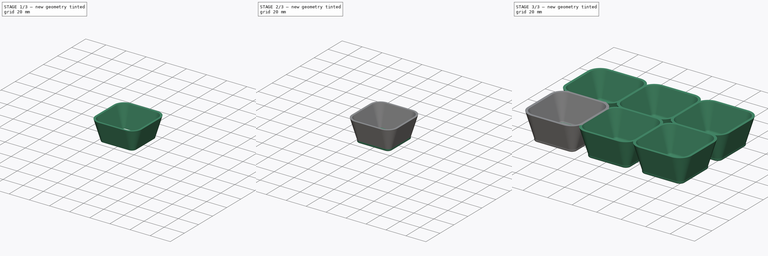
[diagram: build sequence overview — one tinted view per stage of 3, left to right]
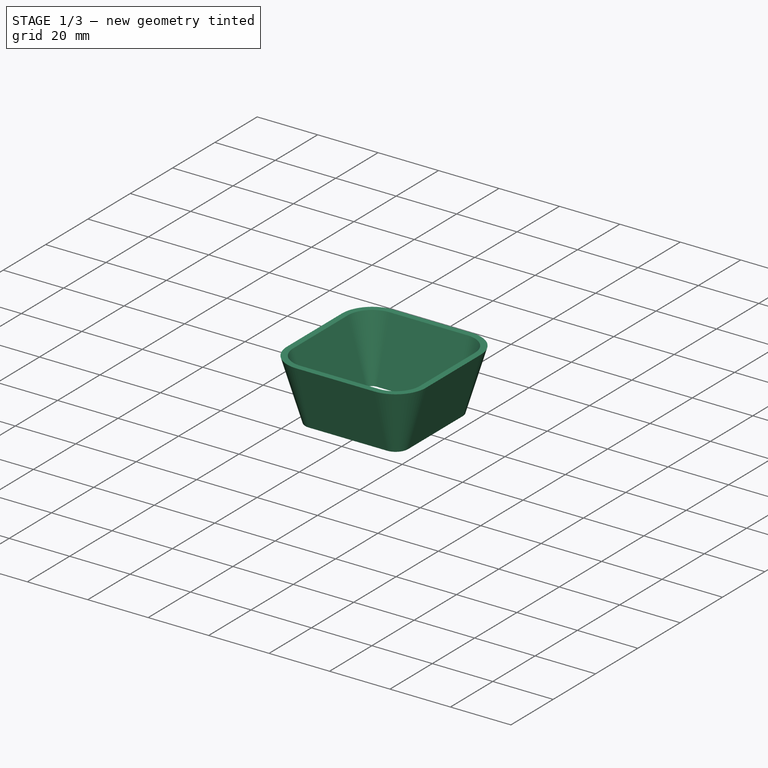
[diagram: stage 1 of 3 — iso view after this stage's code; geometry added in this stage tinted green]
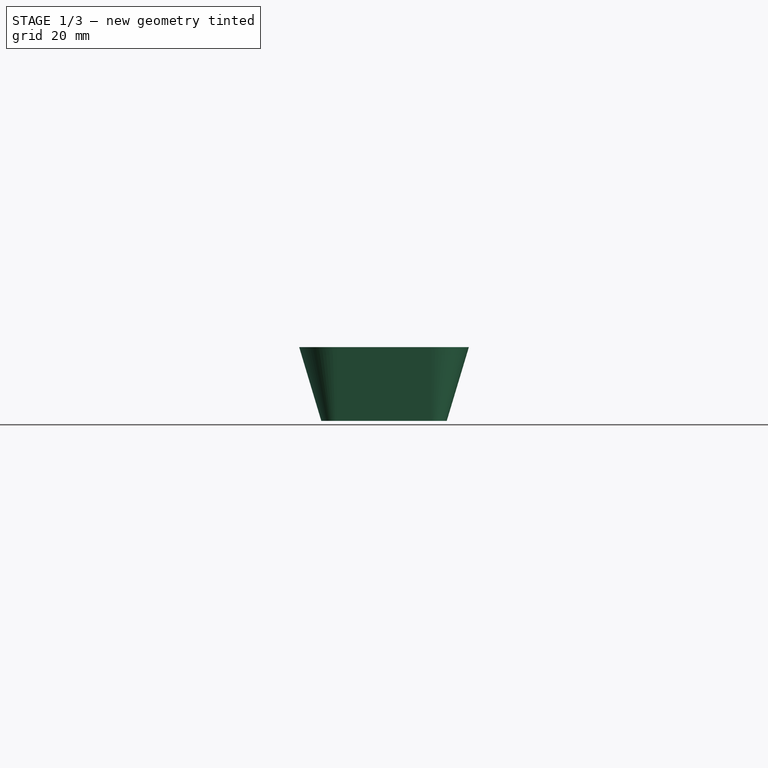
[diagram: stage 1 of 3 — front view after this stage's code; geometry added in this stage tinted green]
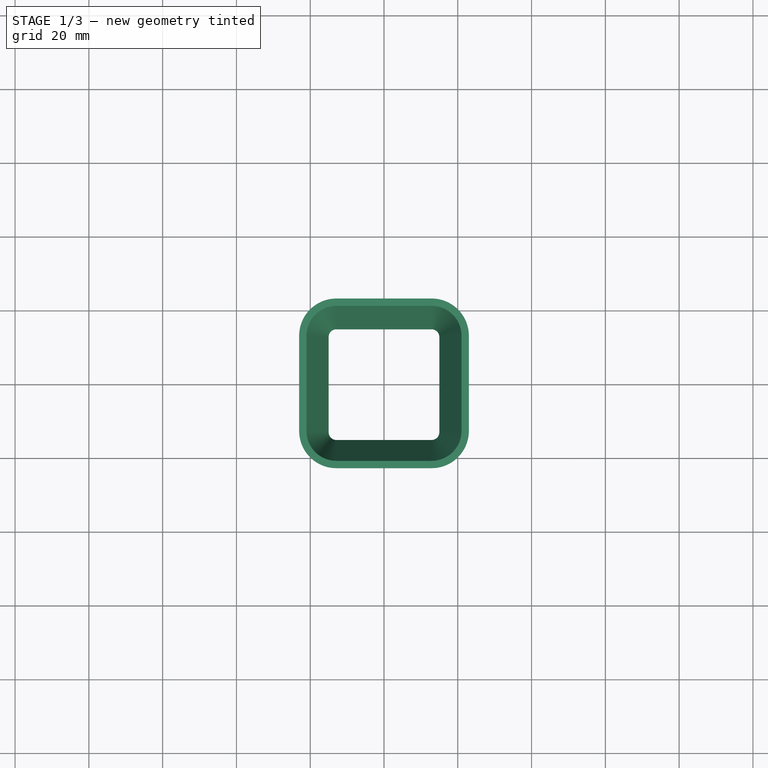
[diagram: stage 1 of 3 — top view after this stage's code; geometry added in this stage tinted green]
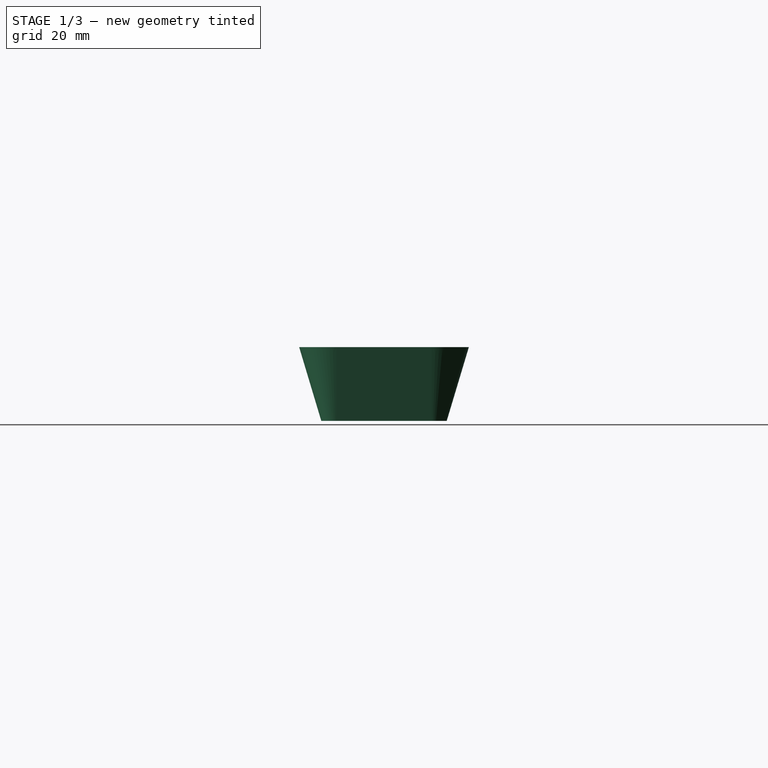
[diagram: stage 1 of 3 — right view after this stage's code; geometry added in this stage tinted green]
FCSTD DOCUMENT  (FreeCAD 0.22RUnknown)
Label: parts tray
License: All rights reserved
LicenseURL: http://en.wikipedia.org/wiki/All_rights_reserved
objects: PartDesign::SubShapeBinder×3, PartDesign::Fillet×2, PartDesign::LinearPattern×2, Sketcher::SketchObject×1, Spreadsheet::Sheet×1, PartDesign::AdditiveLoft×1, PartDesign::SubtractiveLoft×1, PartDesign::Pad×1, PartDesign::MultiTransform×1, PartDesign::Body×1, Part::Refine×1
note: 19 computed .brp shape members not serialized (recipe doc carries the construction recipe); baked Part::Feature solids carry a one-line shape summary decoded from their .brp

FEATURE [Sketcher::SketchObject] Sketch
  AttachmentSupport = -> [XY_Plane]
  FullyConstrained = false
  MapMode = 5
  expr: Constraints[19] = Spreadsheet.depth
  expr: Constraints[20] = Spreadsheet.width
  sketch-geometry (10):
    g0: LineSegment StartX=15 StartY=-12.9122 StartZ=0 EndX=15 EndY=12.9122 EndZ=0
    g1: LineSegment StartX=12.9122 StartY=15 StartZ=0 EndX=-12.9122 EndY=15 EndZ=0
    g2: LineSegment StartX=-15 StartY=12.9122 StartZ=0 EndX=-15 EndY=-12.9122 EndZ=0
    g3: LineSegment StartX=-12.9122 StartY=-15 StartZ=0 EndX=12.9122 EndY=-15 EndZ=0
    g4: ArcOfCircle CenterX=12.9122 CenterY=-12.9122 CenterZ=0 NormalX=0 NormalY=0 NormalZ=1 AngleXU=0 Radius=2.08775 StartAngle=4.71239 EndAngle=6.28319
    g5: ArcOfCircle CenterX=12.9122 CenterY=12.9122 CenterZ=0 NormalX=0 NormalY=0 NormalZ=1 AngleXU=0 Radius=2.08775 StartAngle=-1.95e-14 EndAngle=1.5708
    g6: ArcOfCircle CenterX=-12.9122 CenterY=12.9122 CenterZ=0 NormalX=0 NormalY=0 NormalZ=1 AngleXU=0 Radius=2.08775 StartAngle=1.5708 EndAngle=3.14159
    g7: ArcOfCircle CenterX=-12.9122 CenterY=-12.9122 CenterZ=0 NormalX=0 NormalY=0 NormalZ=1 AngleXU=0 Radius=2.08775 StartAngle=3.14159 EndAngle=4.71239
    g8: GeomPoint X=15 Y=-15 Z=0
    g9: GeomPoint X=-15 Y=15 Z=0
  constraints (21):
    c: Tangent(g0,g4) = -1.5708
    c: Tangent(g0,g5) = -1.5708
    c: Tangent(g1,g5) = -1.5708
    c: Tangent(g1,g6) = -1.5708
    c: Tangent(g2,g6) = -1.5708
    c: Tangent(g2,g7) = -1.5708
    c: Tangent(g3,g7) = -1.5708
    c: Tangent(g3,g4) = -1.5708
    c: Vertical(g0)
    c: Vertical(g2)
    c: Horizontal(g1)
    c: Horizontal(g3)
    c: Equal(g6,g7)
    c: PointOnObject(g8,g0)
    c: PointOnObject(g8,g3)
    c: PointOnObject(g9,g1)
    c: PointOnObject(g9,g2)
    c: Symmetric(g0,g2,g-2)
    c: Symmetric(g3,g1,g-1)
    c: DistanceY(g3,g1) = 30
    c: DistanceX(g2,g0) = 30
FEATURE [Spreadsheet::Sheet] Spreadsheet
  cells = A1='width; B1(width)==30 mm; A2='depth; B2(depth)==30 mm; A3='height; B3(height)==20 mm; A5='wall thickness; B5(wall)==2 mm
FEATURE [PartDesign::SubShapeBinder] Binder  label="top_inside"
  BindCopyOnChange = 0
  BindMode = 0
  ClaimChildren = false
  Context = -> Body [Binder.]
  Fuse = false
  MakeFace = true
  Offset = 6
  OffsetFill = false
  OffsetIntersection = false
  OffsetJoinType = 0
  OffsetOpenResult = false
  PartialLoad = false
  Placement = pos=(0,0,20) rot=(0,0,1;0rad)
  Relative = true
  Support = -> [Sketch]
  _Version = 2
  expr: .Placement.Base.z = Spreadsheet.height
  expr: Offset = Spreadsheet.wall * 3
FEATURE [PartDesign::SubShapeBinder] Binder001  label="bottom_outside"
  BindCopyOnChange = 0
  BindMode = 0
  ClaimChildren = false
  Context = -> Body [Binder001.]
  Fuse = false
  MakeFace = true
  Offset = 2
  OffsetFill = false
  OffsetIntersection = false
  OffsetJoinType = 0
  OffsetOpenResult = false
  PartialLoad = false
  Relative = true
  Support = -> [Sketch]
  _Version = 2
  expr: Offset = Spreadsheet.wall
FEATURE [PartDesign::SubShapeBinder] Binder002  label="top_outside"
  BindCopyOnChange = 0
  BindMode = 0
  ClaimChildren = false
  Context = -> Body [Binder002.]
  Fuse = false
  MakeFace = true
  Offset = 8
  OffsetFill = false
  OffsetIntersection = false
  OffsetJoinType = 0
  OffsetOpenResult = false
  PartialLoad = false
  Placement = pos=(0,0,20) rot=(0,0,1;0rad)
  Relative = true
  Support = -> [Sketch]
  _Version = 2
  expr: .Placement.Base.z = Spreadsheet.height
  expr: Offset = Spreadsheet.wall * 4
FEATURE [PartDesign::AdditiveLoft] AdditiveLoft001  label="outer loft"
  Closed = false
  Profile = -> Binder001
  Ruled = false
  Sections = -> [Binder002]
  Suppressed = false
FEATURE [PartDesign::SubtractiveLoft] SubtractiveLoft
  BaseFeature = -> AdditiveLoft001
  Closed = false
  Profile = -> Sketch
  Ruled = false
  Sections = -> [Binder]
  Suppressed = false
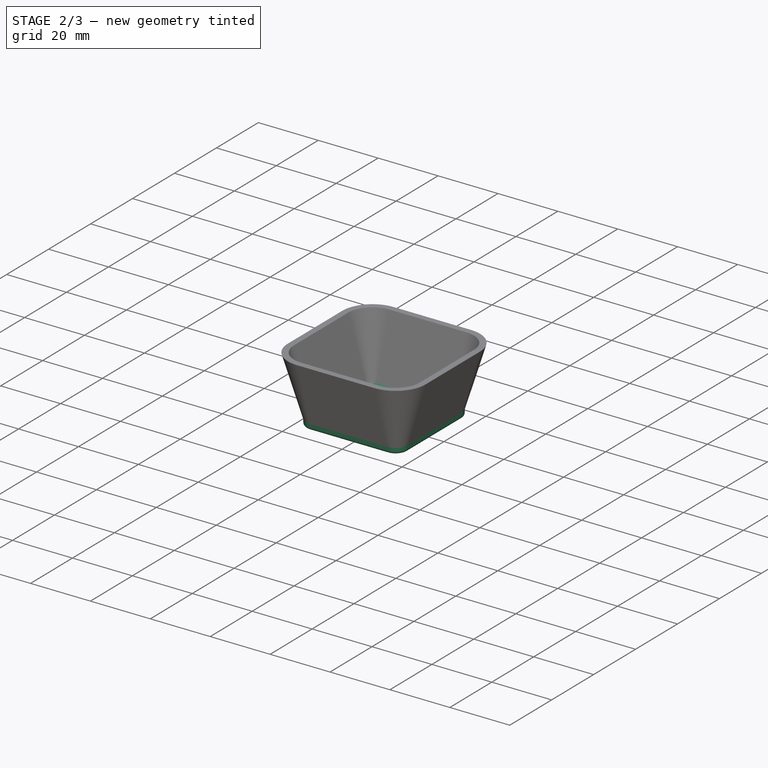
[diagram: stage 2 of 3 — iso view after this stage's code; geometry added in this stage tinted green]
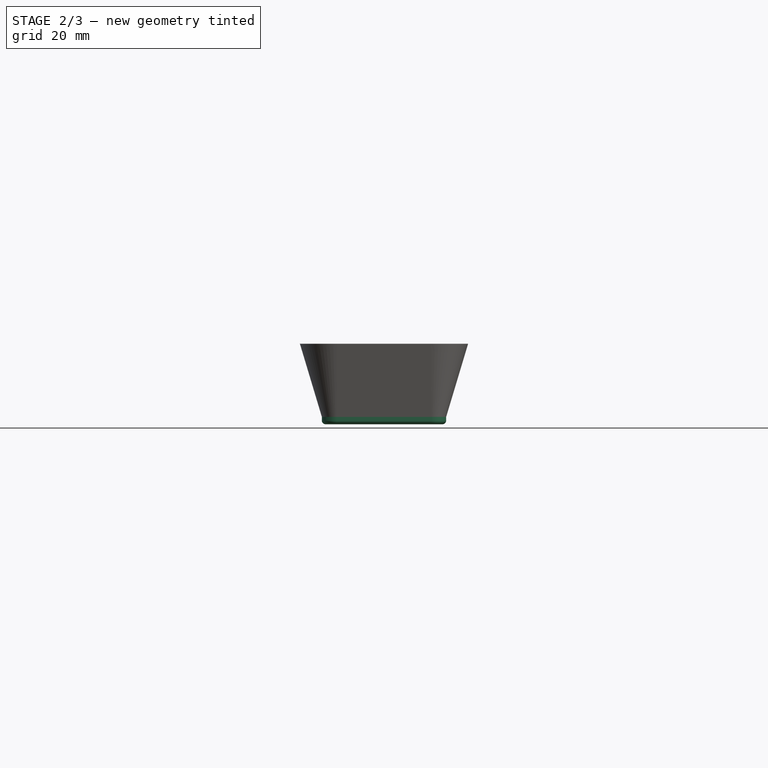
[diagram: stage 2 of 3 — front view after this stage's code; geometry added in this stage tinted green]
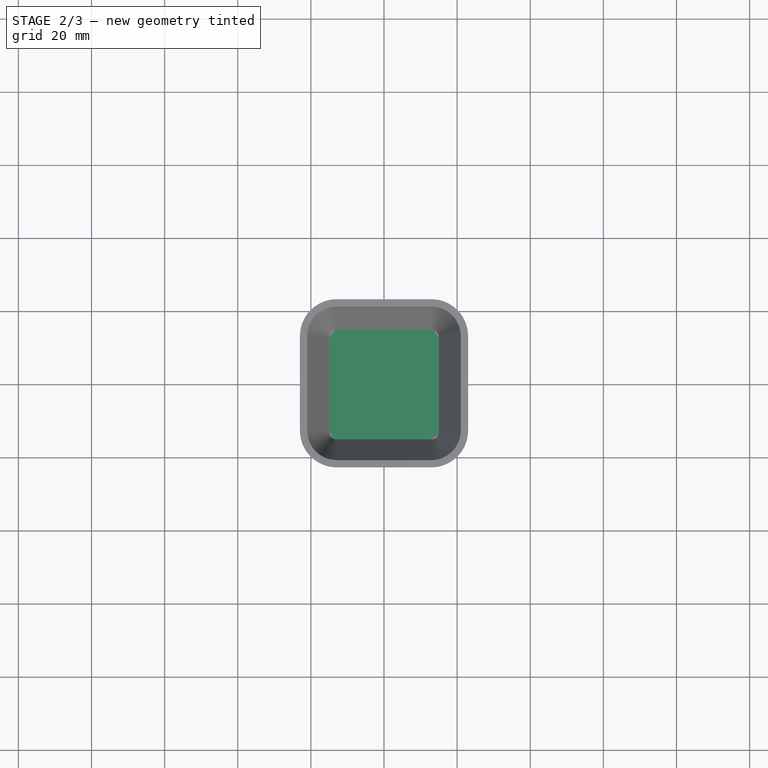
[diagram: stage 2 of 3 — top view after this stage's code; geometry added in this stage tinted green]
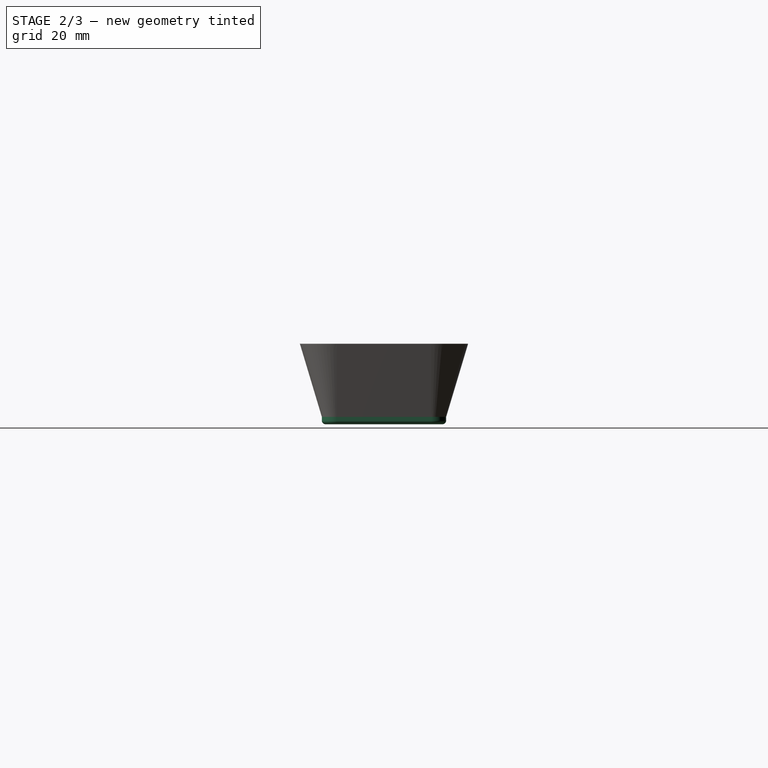
[diagram: stage 2 of 3 — right view after this stage's code; geometry added in this stage tinted green]
FEATURE [PartDesign::Pad] Pad
  BaseFeature = -> SubtractiveLoft
  Direction = (0,0,1)
  Length = 2
  Length2 = 10
  Profile = -> Binder001
  Reversed = true
  Suppressed = false
  Type = 0
  expr: Length = Spreadsheet.wall
FEATURE [PartDesign::Fillet] Fillet
  Base = -> Pad [Edge35]
  BaseFeature = -> Pad
  Radius = 1
  SupportTransform = false
  Suppressed = false
  UseAllEdges = false
  expr: Radius = Spreadsheet.wall / 2
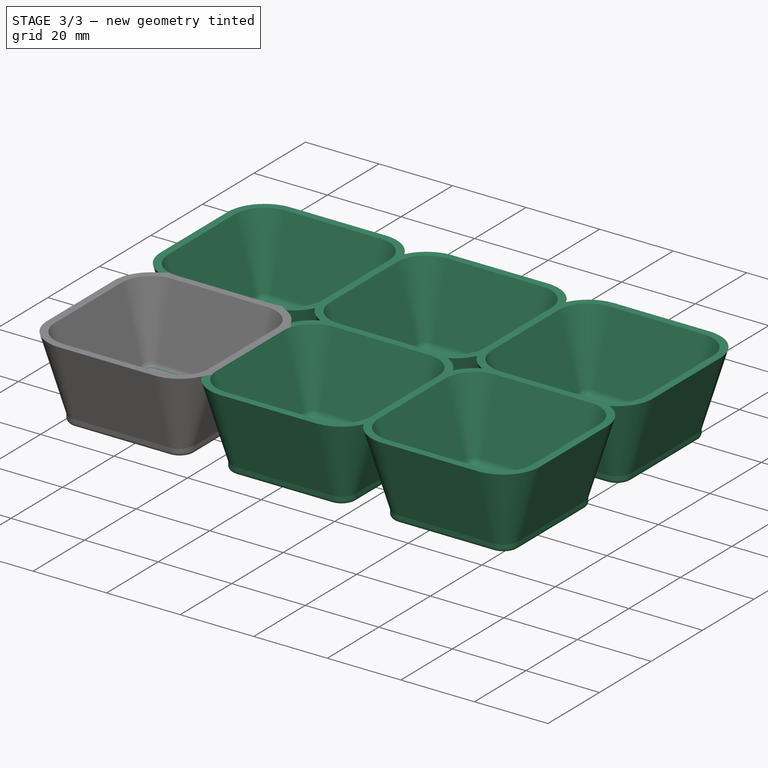
[diagram: stage 3 of 3 — iso view after this stage's code; geometry added in this stage tinted green]
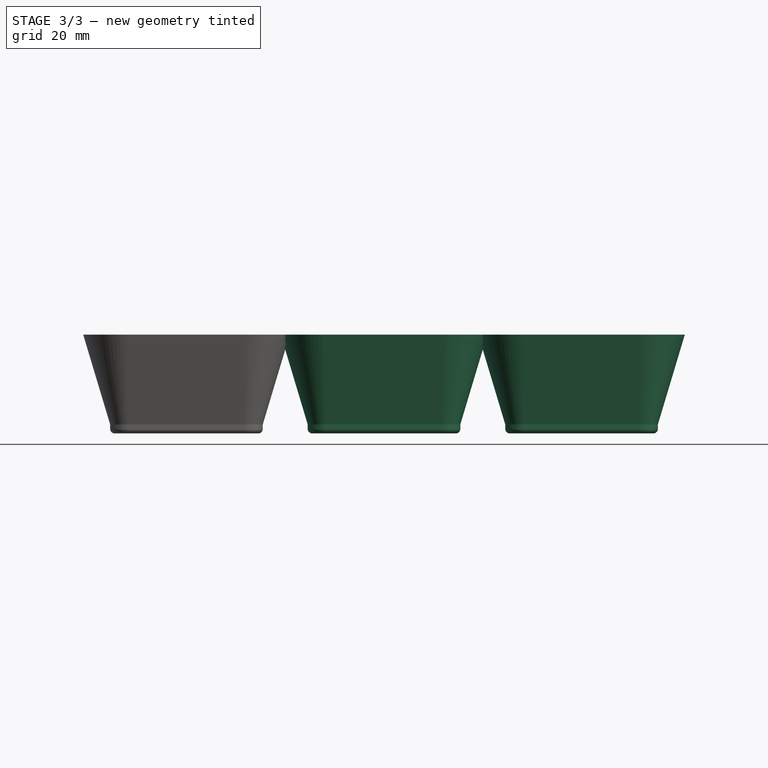
[diagram: stage 3 of 3 — front view after this stage's code; geometry added in this stage tinted green]
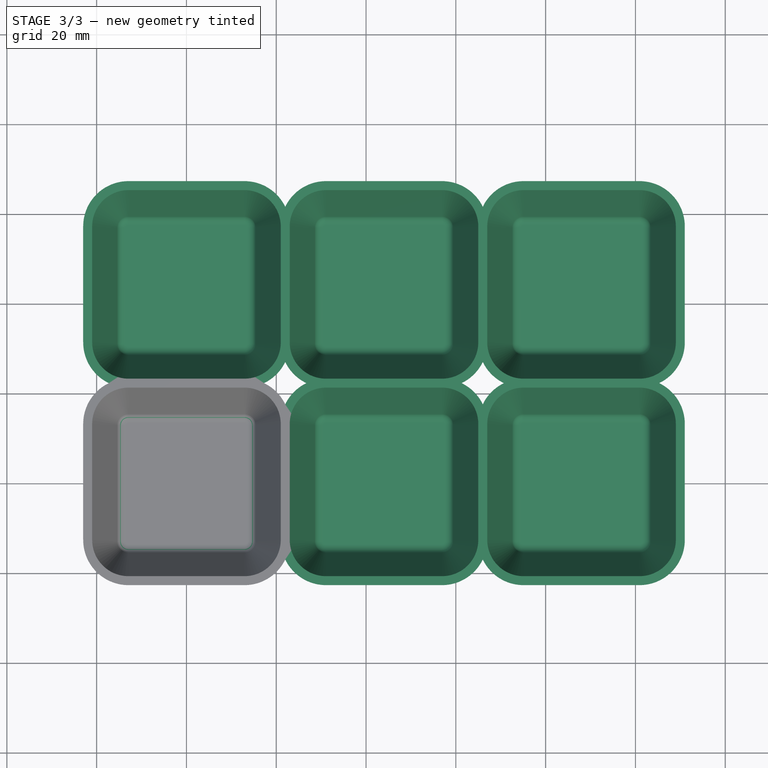
[diagram: stage 3 of 3 — top view after this stage's code; geometry added in this stage tinted green]
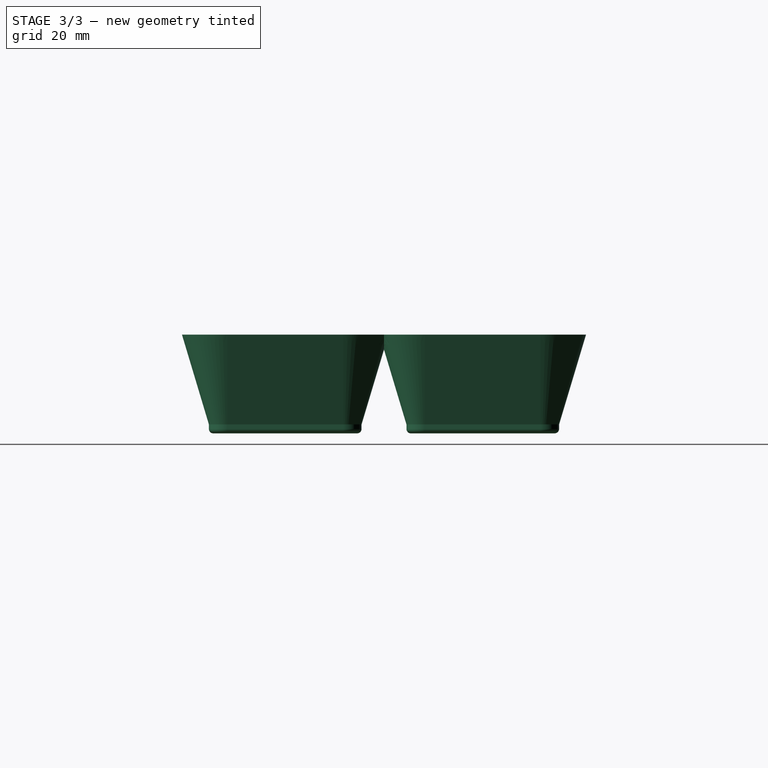
[diagram: stage 3 of 3 — right view after this stage's code; geometry added in this stage tinted green]
FEATURE [PartDesign::LinearPattern] LinearPattern
  Direction = -> X_Axis
  Length = 88
  Mode = 1
  Occurrences = 3
  Offset = 44
  Suppressed = false
  TransformMode = 0
  expr: Offset = Spreadsheet.width + 7 * Spreadsheet.wall
FEATURE [PartDesign::LinearPattern] LinearPattern001
  Direction = -> Y_Axis
  Length = 44
  Mode = 1
  Occurrences = 2
  Offset = 44
  Suppressed = false
  TransformMode = 0
  expr: Length = Spreadsheet.width + 7 * Spreadsheet.wall
  expr: Offset = Spreadsheet.width + 7 * Spreadsheet.wall
FEATURE [PartDesign::Fillet] Fillet001
  Base = -> Fillet [Edge69]
  BaseFeature = -> Fillet
  Radius = 2
  SupportTransform = false
  Suppressed = false
  UseAllEdges = false
FEATURE [PartDesign::MultiTransform] MultiTransform
  BaseFeature = -> Fillet001
  Refine = true
  Suppressed = false
  TransformMode = 1
  Transformations = -> [LinearPattern,LinearPattern001]
FEATURE [PartDesign::Body] Body
  AllowCompound = false
  Group = -> [Sketch,Binder,Binder001,Binder002,AdditiveLoft001,SubtractiveLoft,Pad,Fillet,Fillet001,MultiTransform,LinearPattern,LinearPattern001]
  Origin = -> Origin
  Tip = -> MultiTransform
FEATURE [Part::Refine] Body001
  Placement = pos=(0,0,9.3) rot=(0,0,1;0rad)
  Source = -> Body
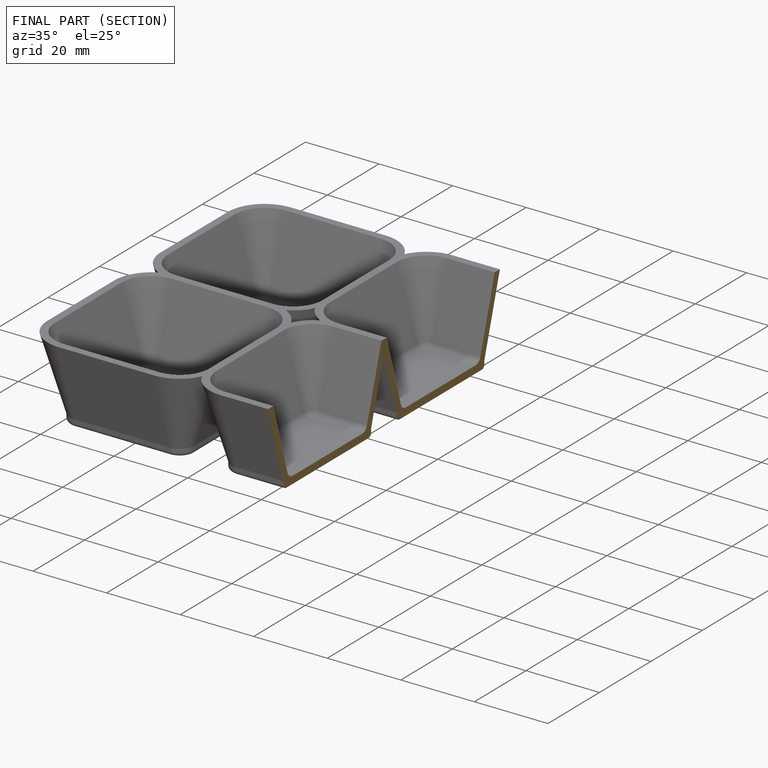
[diagram: finished part — half-section view (interior)]
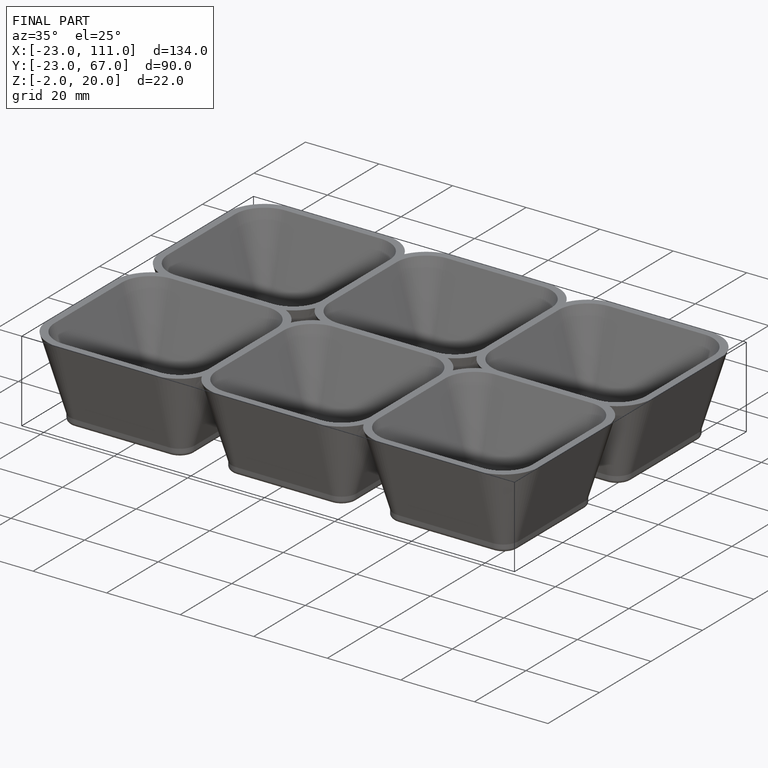
[diagram: finished part — iso view with bounding-box wireframe]
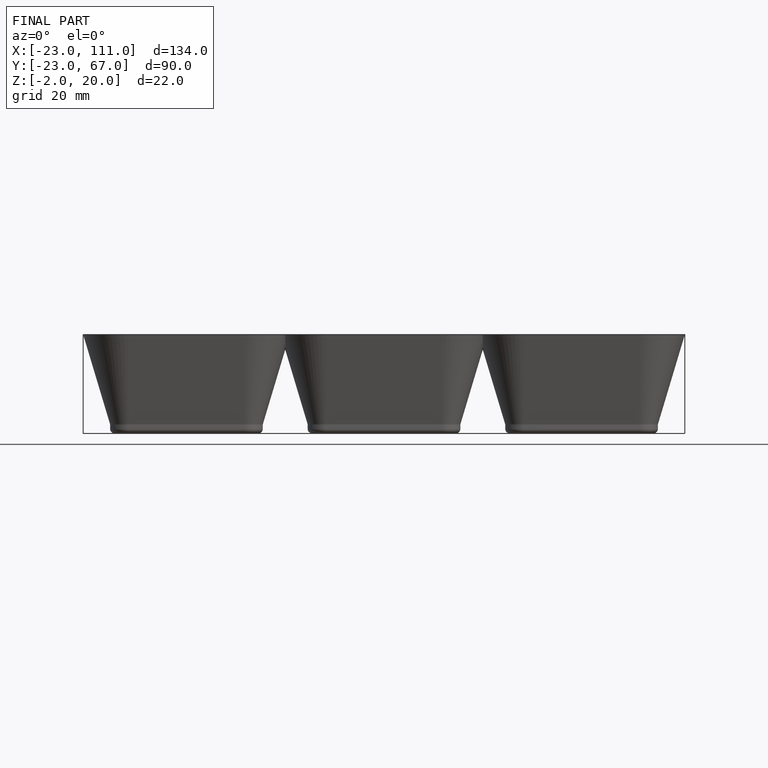
[diagram: finished part — front view with bounding-box wireframe]
